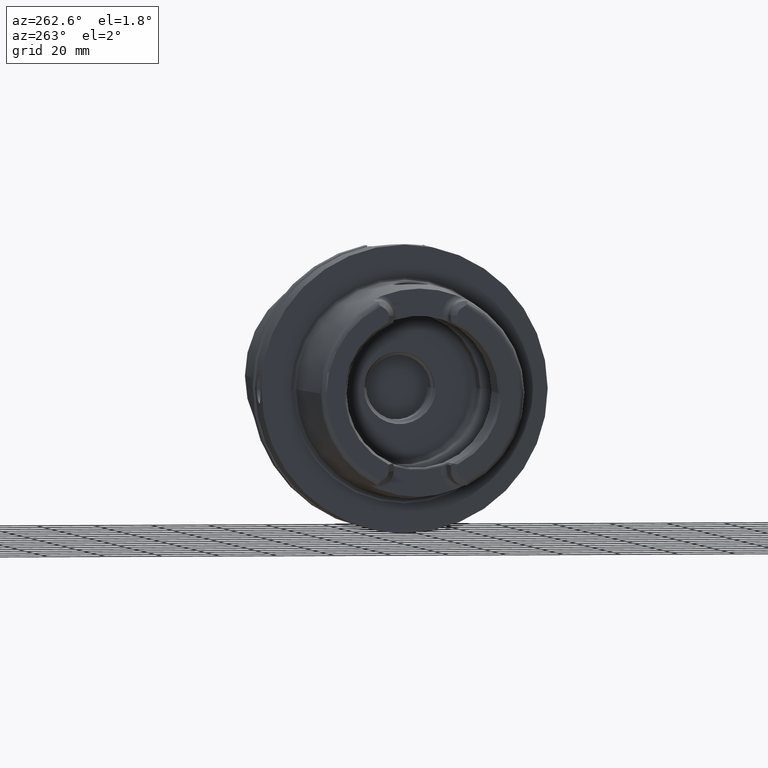
[diagram: clean part render]
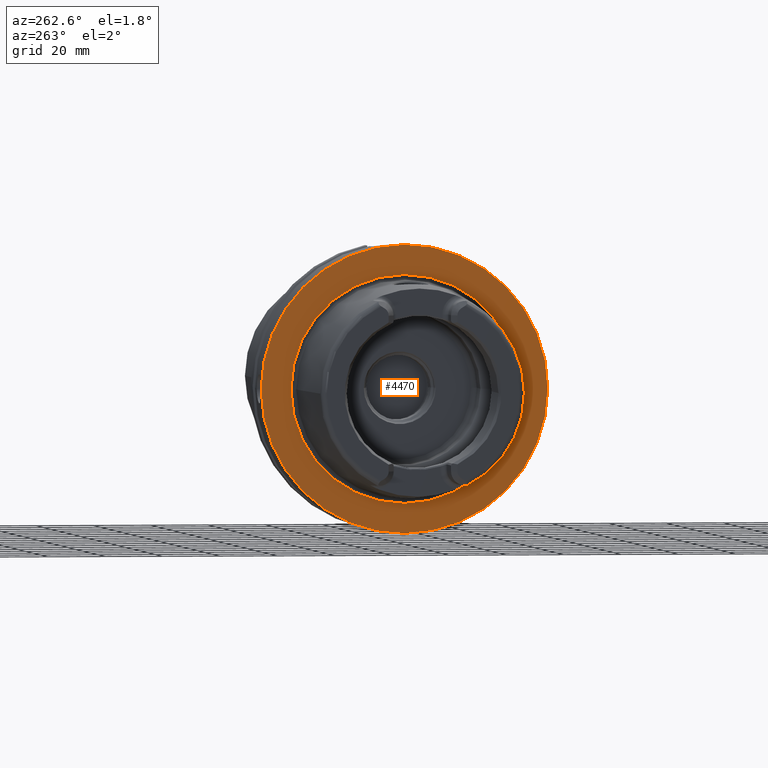
[diagram: same view with one face highlighted and labeled with its STEP entity id]
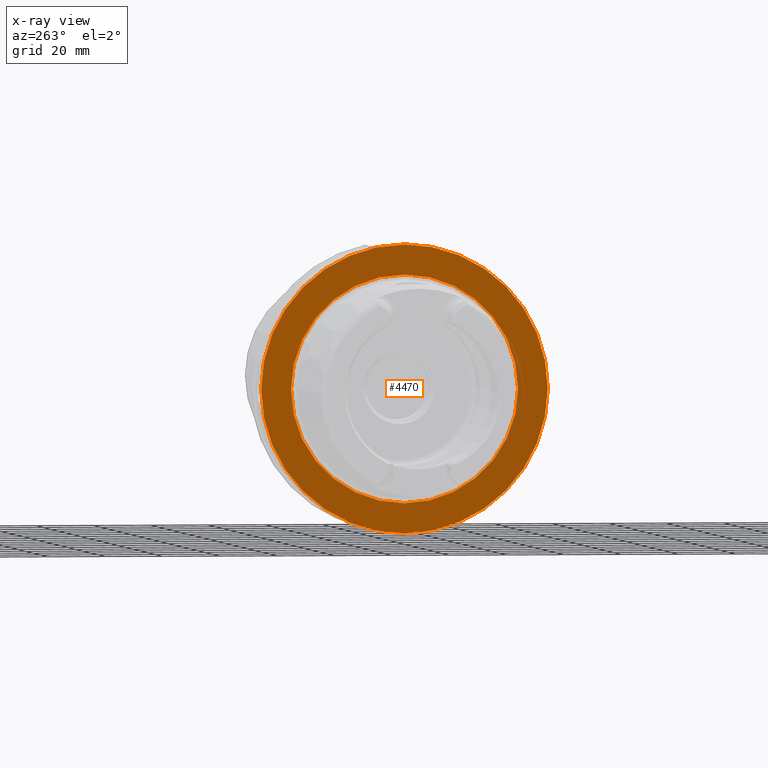
[diagram: x-ray of the same camera — body ghosted, the highlighted face saturated]
A machine part, auxiliary view. The second image highlights one B-rep face of the part: STEP entity #4470.
The next image is the same camera in x-ray: the body ghosted, the highlighted face saturated — about 4% of this face is hidden behind the body in this view.
In plain terms, the highlighted planar face has unit normal (1, 0, 0).
Its self-contained STEP definition (entity closure, byte-faithful):
#905=CARTESIAN_POINT('',(2.842170943040E-14,0.E0,0.E0));
#906=DIRECTION('',(1.E0,0.E0,0.E0));
#907=DIRECTION('',(0.E0,1.E0,0.E0));
#908=AXIS2_PLACEMENT_3D('',#905,#906,#907);
#910=CARTESIAN_POINT('',(2.842170943040E-14,0.E0,0.E0));
#911=DIRECTION('',(-1.E0,0.E0,0.E0));
#912=DIRECTION('',(0.E0,1.E0,0.E0));
#913=AXIS2_PLACEMENT_3D('',#910,#911,#912);
#915=CARTESIAN_POINT('',(0.E0,0.E0,0.E0));
#916=DIRECTION('',(-1.E0,0.E0,0.E0));
#917=DIRECTION('',(0.E0,-1.E0,0.E0));
#918=AXIS2_PLACEMENT_3D('',#915,#916,#917);
#920=CARTESIAN_POINT('',(0.E0,0.E0,0.E0));
#921=DIRECTION('',(-1.E0,0.E0,0.E0));
#922=DIRECTION('',(0.E0,1.E0,0.E0));
#923=AXIS2_PLACEMENT_3D('',#920,#921,#922);
#3021=CARTESIAN_POINT('',(2.842170943040E-14,5.E1,0.E0));
#3022=CARTESIAN_POINT('',(2.842170943040E-14,-5.E1,0.E0));
#3023=VERTEX_POINT('',#3021);
#3024=VERTEX_POINT('',#3022);
#3049=CARTESIAN_POINT('',(0.E0,-3.963225E1,0.E0));
#3050=VERTEX_POINT('',#3049);
#3051=CARTESIAN_POINT('',(0.E0,3.963225E1,0.E0));
#3052=VERTEX_POINT('',#3051);
#4455=CARTESIAN_POINT('',(0.E0,0.E0,0.E0));
#4456=DIRECTION('',(1.E0,0.E0,0.E0));
#4457=DIRECTION('',(0.E0,-1.E0,0.E0));
#4458=AXIS2_PLACEMENT_3D('',#4455,#4456,#4457);
#4459=PLANE('',#4458);
#4461=ORIENTED_EDGE('',*,*,#4460,.T.);
#4463=ORIENTED_EDGE('',*,*,#4462,.F.);
#4464=EDGE_LOOP('',(#4461,#4463));
#4465=FACE_OUTER_BOUND('',#4464,.F.);
#4466=ORIENTED_EDGE('',*,*,#4450,.T.);
#4467=ORIENTED_EDGE('',*,*,#4434,.T.);
#4468=EDGE_LOOP('',(#4466,#4467));
#4469=FACE_BOUND('',#4468,.F.);
#4470=ADVANCED_FACE('',(#4465,#4469),#4459,.F.);
#909=CIRCLE('',#908,5.E1);
#914=CIRCLE('',#913,5.E1);
#919=CIRCLE('',#918,3.963225E1);
#924=CIRCLE('',#923,3.963225E1);
#4434=EDGE_CURVE('',#3052,#3050,#924,.T.);
#4450=EDGE_CURVE('',#3050,#3052,#919,.T.);
#4460=EDGE_CURVE('',#3023,#3024,#909,.T.);
#4462=EDGE_CURVE('',#3023,#3024,#914,.T.);